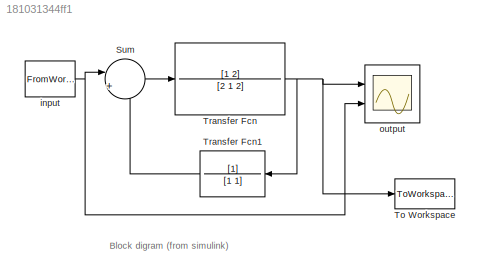
MODEL slx_181031344ff1
KIND model
CONFIG AbsTol = auto
CONFIG EnableMultiTasking = off
CONFIG FixedStep = auto
CONFIG MaxStep = auto
CONFIG MinStep = auto
CONFIG RelTol = 1e-3
CONFIG SampleTimeConstraint = Unconstrained
CONFIG Solver = VariableStepAuto
CONFIG SolverName = VariableStepAuto
CONFIG StartTime = 0.0
CONFIG StopTime = 200
BLOCK [Sum] Sum
  IconShape = round
  InputSameDT = off
  Inputs = |+-
  OutDataTypeStr = Inherit: Inherit via internal rule
  Ports = [2, 1]
  SaturateOnIntegerOverflow = off
BLOCK [ToWorkspace] To Workspace
  FixptAsFi = on
  MaxDataPoints = inf
  Ports = [1]
  SampleTime = -1
  Save2DSignal = 3-D array (concatenate along third dimension)
  VariableName = simout
BLOCK [TransferFcn] Transfer Fcn
  Denominator = [2 1 2]
  Numerator = [1 2]
BLOCK [TransferFcn] Transfer Fcn1
  Denominator = [1 1]
BLOCK [FromWorkspace] input
  SampleTime = 0.001
  VariableName = x2
  ZeroCross = on
BLOCK [Scope] output
  NumInputPorts = 2
  Ports = [2]
  ScopeSpecificationString = Simulink.scopes.TimeScopeBlockCfg('CurrentConfiguration', extmgr.ConfigurationSet(extmgr.Configuration('Core','General UI',true),extmgr.Configuration('Core','Source UI',true),extmgr.Configuration('Sources','WiredSimulink',true),extmgr.Configuration('Visuals','Time Domain',true,'SerializedDisplays',{struct('MinYLimReal','-0.125','MaxYLimReal','1.125','YLabelReal','amplitude','MinYLimMag','0.00000',...<+1581ch>
ANNOTATION (root): Block digram (from simulink)
LINE Sum:1 -> Transfer Fcn:1
LINE Transfer Fcn1:1 -> Sum:2
NET Transfer Fcn:1 -> To Workspace:1, Transfer Fcn1:1, output:1
NET input:1 -> Sum:1, output:2
note: NET lines group one-source signal fan-out (src -> all destinations, sorted); 1:1 wires keep LINE
